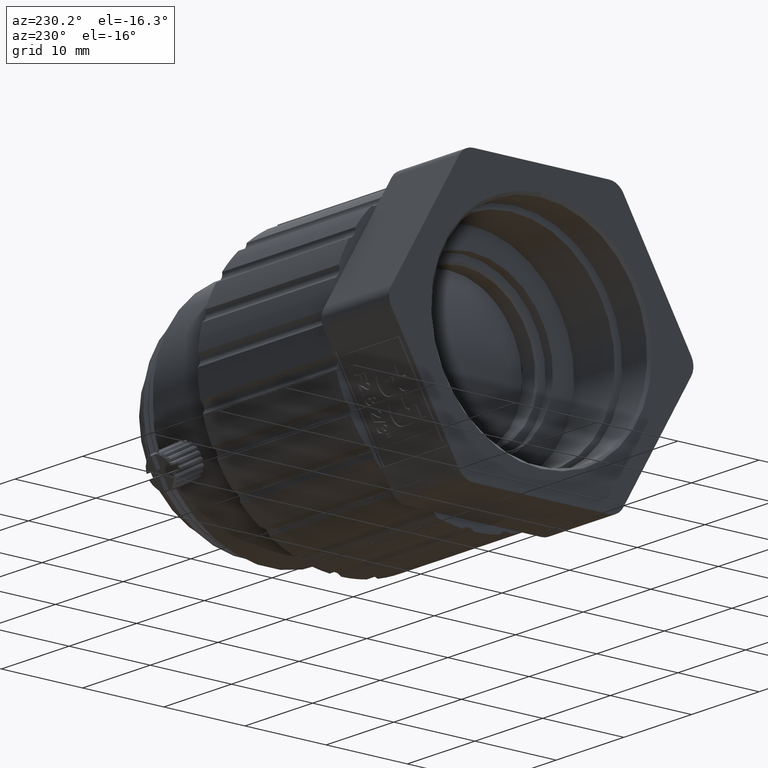
[diagram: clean part render]
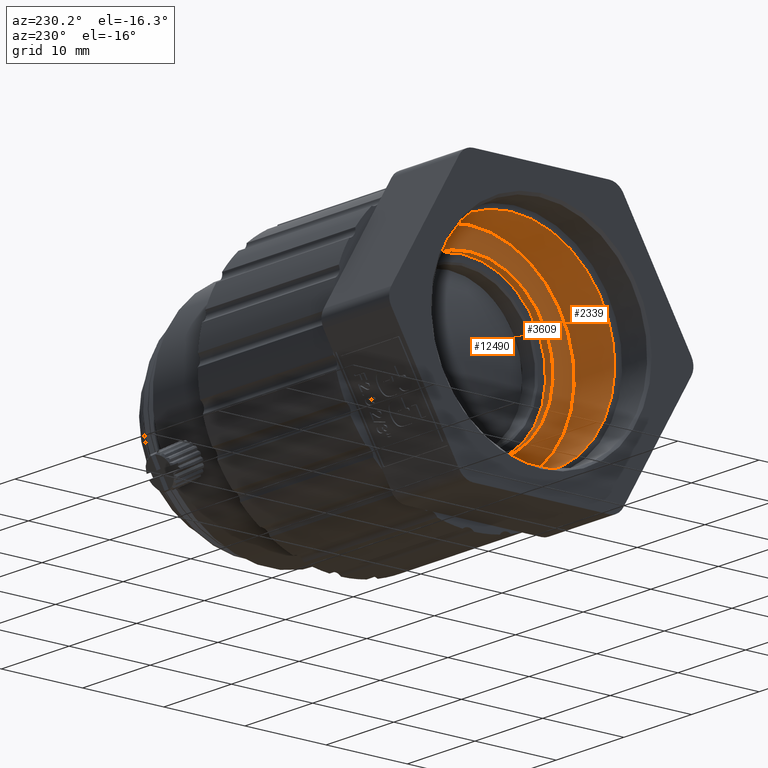
[diagram: same view with one multi-face feature highlighted, each face labeled with its STEP entity id]
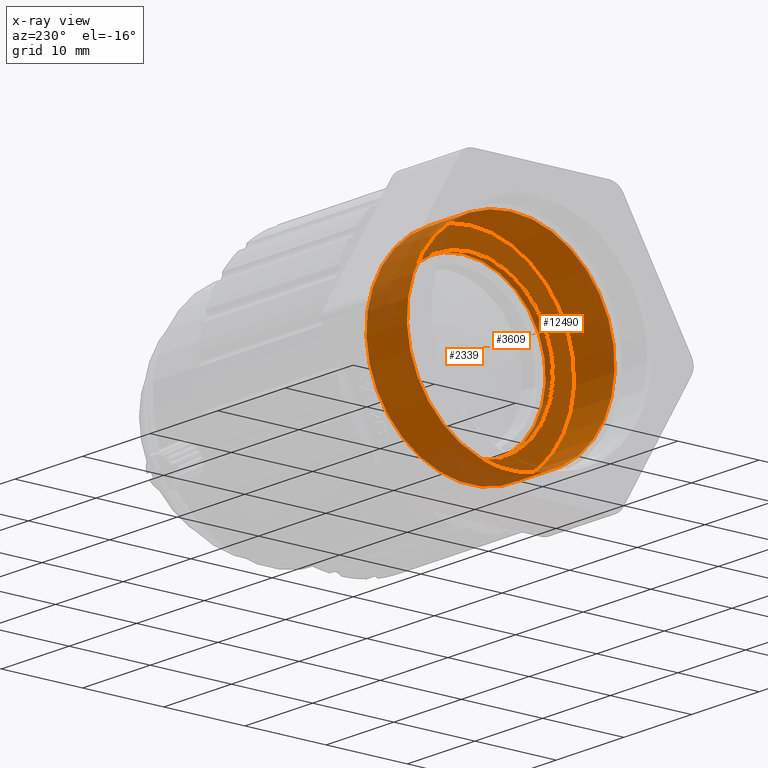
[diagram: x-ray of the same camera — body ghosted, the whole feature saturated]
A machine part, auxiliary view. The highlighted faces form ONE feature: a stepped (counterbored) hole: 2 coaxial cylindrical walls of radii 10.1999 -> 12.7999 mm joined by 1 annular planar shoulder face(s). The faces share edges in the B-rep.
The next image is the same camera in x-ray: the body ghosted and the whole hole feature saturated, so the bore chain is visible through the body.
Their STEP definitions:
[1] entity #2339 (Cylinder):
#123 = CIRCLE ( 'NONE', #13874, 12.79990415786302904 ) ;
#155 = FACE_OUTER_BOUND ( 'NONE', #3516, .T. ) ;
#2284 = DIRECTION ( 'NONE',  ( 0.000000000000000000, 0.000000000000000000, 1.000000000000000000 ) ) ;
#2339 = ADVANCED_FACE ( 'NONE', ( #11073, #155 ), #5077, .F. ) ;
#2463 = CARTESIAN_POINT ( 'NONE',  ( -17.03823567964990460, 3.111155698410916770, 59.30029006933735047 ) ) ;
#2698 = VERTEX_POINT ( 'NONE', #7329 ) ;
#3020 = ORIENTED_EDGE ( 'NONE', *, *, #13363, .T. ) ;
#3516 = EDGE_LOOP ( 'NONE', ( #3020 ) ) ;
#4387 = AXIS2_PLACEMENT_3D ( 'NONE', #14813, #8760, #2284 ) ;
#5077 = CYLINDRICAL_SURFACE ( 'NONE', #4387, 12.79990415786302904 ) ;
#6163 = AXIS2_PLACEMENT_3D ( 'NONE', #14624, #7192, #7276 ) ;
#7192 = DIRECTION ( 'NONE',  ( -1.000000000000000000, -0.000000000000000000, -0.000000000000000000 ) ) ;
#7276 = DIRECTION ( 'NONE',  ( 0.000000000000000000, 0.000000000000000000, 1.000000000000000000 ) ) ;
#7329 = CARTESIAN_POINT ( 'NONE',  ( -11.03814130313462982, 3.111155698410916770, 59.30029006933735047 ) ) ;
#8748 = DIRECTION ( 'NONE',  ( 0.000000000000000000, 0.000000000000000000, 1.000000000000000000 ) ) ;
#8760 = DIRECTION ( 'NONE',  ( -1.000000000000000000, -0.000000000000000000, -0.000000000000000000 ) ) ;
#9940 = DIRECTION ( 'NONE',  ( -1.000000000000000000, -0.000000000000000000, -0.000000000000000000 ) ) ;
#10497 = CIRCLE ( 'NONE', #6163, 12.79990415786302904 ) ;
#11073 = FACE_OUTER_BOUND ( 'NONE', #14275, .T. ) ;
#13363 = EDGE_CURVE ( 'NONE', #13638, #13638, #10497, .T. ) ;
#13638 = VERTEX_POINT ( 'NONE', #2463 ) ;
#13874 = AXIS2_PLACEMENT_3D ( 'NONE', #14801, #9940, #8748 ) ;
#14033 = EDGE_CURVE ( 'NONE', #2698, #2698, #123, .T. ) ;
#14275 = EDGE_LOOP ( 'NONE', ( #15193 ) ) ;
#14624 = CARTESIAN_POINT ( 'NONE',  ( -17.03823567964990460, 3.111155698410916770, 46.50038591147431788 ) ) ;
#14801 = CARTESIAN_POINT ( 'NONE',  ( -11.03814130313462982, 3.111155698410916770, 46.50038591147431788 ) ) ;
#14813 = CARTESIAN_POINT ( 'NONE',  ( -23.06732615017725863, 3.111155698410916770, 46.50038591147431788 ) ) ;
#15193 = ORIENTED_EDGE ( 'NONE', *, *, #14033, .F. ) ;
[2] entity #12490 (Cylinder):
#642 = CARTESIAN_POINT ( 'NONE',  ( -11.03814130313418573, 3.111155698410916770, 56.70030648602653400 ) ) ;
#942 = CARTESIAN_POINT ( 'NONE',  ( -9.938140982342469343, 3.111155698410916770, 46.50038591147431788 ) ) ;
#1326 = FACE_OUTER_BOUND ( 'NONE', #8657, .T. ) ;
#1860 = EDGE_CURVE ( 'NONE', #4231, #4231, #12309, .T. ) ;
#2282 = DIRECTION ( 'NONE',  ( -1.000000000000000000, -0.000000000000000000, -0.000000000000000000 ) ) ;
#2528 = CYLINDRICAL_SURFACE ( 'NONE', #10297, 10.19992057455221257 ) ;
#2553 = ORIENTED_EDGE ( 'NONE', *, *, #13205, .F. ) ;
#3732 = CARTESIAN_POINT ( 'NONE',  ( -23.06732615017725863, 3.111155698410916770, 46.50038591147431788 ) ) ;
#4231 = VERTEX_POINT ( 'NONE', #642 ) ;
#4530 = DIRECTION ( 'NONE',  ( -1.000000000000000000, -0.000000000000000000, -0.000000000000000000 ) ) ;
#4996 = DIRECTION ( 'NONE',  ( 0.000000000000000000, 0.000000000000000000, 1.000000000000000000 ) ) ;
#5642 = DIRECTION ( 'NONE',  ( 0.000000000000000000, 0.000000000000000000, 1.000000000000000000 ) ) ;
#6183 = AXIS2_PLACEMENT_3D ( 'NONE', #15188, #12048, #11964 ) ;
#7482 = CARTESIAN_POINT ( 'NONE',  ( -9.938140982342469343, 3.111155698410916770, 56.70030648602653400 ) ) ;
#8510 = AXIS2_PLACEMENT_3D ( 'NONE', #942, #4530, #5642 ) ;
#8657 = EDGE_LOOP ( 'NONE', ( #12217 ) ) ;
#10297 = AXIS2_PLACEMENT_3D ( 'NONE', #3732, #2282, #4996 ) ;
#11082 = VERTEX_POINT ( 'NONE', #7482 ) ;
#11964 = DIRECTION ( 'NONE',  ( 0.000000000000000000, 0.000000000000000000, 1.000000000000000000 ) ) ;
#12048 = DIRECTION ( 'NONE',  ( 1.000000000000000000, 0.000000000000000000, 0.000000000000000000 ) ) ;
#12217 = ORIENTED_EDGE ( 'NONE', *, *, #1860, .F. ) ;
#12309 = CIRCLE ( 'NONE', #6183, 10.19992057455221257 ) ;
#12490 = ADVANCED_FACE ( 'NONE', ( #1326, #13227 ), #2528, .F. ) ;
#13205 = EDGE_CURVE ( 'NONE', #11082, #11082, #15377, .T. ) ;
#13227 = FACE_OUTER_BOUND ( 'NONE', #13589, .T. ) ;
#13589 = EDGE_LOOP ( 'NONE', ( #2553 ) ) ;
#15188 = CARTESIAN_POINT ( 'NONE',  ( -11.03814130313418573, 3.111155698410916770, 46.50038591147431788 ) ) ;
#15377 = CIRCLE ( 'NONE', #8510, 10.19992057455221257 ) ;
[3] entity #3609 (Plane):
#123 = CIRCLE ( 'NONE', #13874, 12.79990415786302904 ) ;
#642 = CARTESIAN_POINT ( 'NONE',  ( -11.03814130313418573, 3.111155698410916770, 56.70030648602653400 ) ) ;
#1860 = EDGE_CURVE ( 'NONE', #4231, #4231, #12309, .T. ) ;
#2698 = VERTEX_POINT ( 'NONE', #7329 ) ;
#3609 = ADVANCED_FACE ( 'NONE', ( #15596, #13219 ), #6889, .T. ) ;
#4231 = VERTEX_POINT ( 'NONE', #642 ) ;
#4425 = DIRECTION ( 'NONE',  ( -1.000000000000000000, 0.000000000000000000, 0.000000000000000000 ) ) ;
#4658 = DIRECTION ( 'NONE',  ( 0.000000000000000000, 0.000000000000000000, 1.000000000000000000 ) ) ;
#5870 = ORIENTED_EDGE ( 'NONE', *, *, #14033, .T. ) ;
#6183 = AXIS2_PLACEMENT_3D ( 'NONE', #15188, #12048, #11964 ) ;
#6889 = PLANE ( 'NONE',  #9535 ) ;
#7329 = CARTESIAN_POINT ( 'NONE',  ( -11.03814130313462982, 3.111155698410916770, 59.30029006933735047 ) ) ;
#8748 = DIRECTION ( 'NONE',  ( 0.000000000000000000, 0.000000000000000000, 1.000000000000000000 ) ) ;
#9191 = ORIENTED_EDGE ( 'NONE', *, *, #1860, .T. ) ;
#9535 = AXIS2_PLACEMENT_3D ( 'NONE', #15520, #4425, #4658 ) ;
#9940 = DIRECTION ( 'NONE',  ( -1.000000000000000000, -0.000000000000000000, -0.000000000000000000 ) ) ;
#11964 = DIRECTION ( 'NONE',  ( 0.000000000000000000, 0.000000000000000000, 1.000000000000000000 ) ) ;
#12048 = DIRECTION ( 'NONE',  ( 1.000000000000000000, 0.000000000000000000, 0.000000000000000000 ) ) ;
#12309 = CIRCLE ( 'NONE', #6183, 10.19992057455221257 ) ;
#13219 = FACE_OUTER_BOUND ( 'NONE', #15674, .T. ) ;
#13868 = EDGE_LOOP ( 'NONE', ( #9191 ) ) ;
#13874 = AXIS2_PLACEMENT_3D ( 'NONE', #14801, #9940, #8748 ) ;
#14033 = EDGE_CURVE ( 'NONE', #2698, #2698, #123, .T. ) ;
#14801 = CARTESIAN_POINT ( 'NONE',  ( -11.03814130313462982, 3.111155698410916770, 46.50038591147431788 ) ) ;
#15188 = CARTESIAN_POINT ( 'NONE',  ( -11.03814130313418573, 3.111155698410916770, 46.50038591147431788 ) ) ;
#15520 = CARTESIAN_POINT ( 'NONE',  ( -11.03814130313440778, 1531.707948952683864, 46.50038591147431788 ) ) ;
#15596 = FACE_BOUND ( 'NONE', #13868, .T. ) ;
#15674 = EDGE_LOOP ( 'NONE', ( #5870 ) ) ;